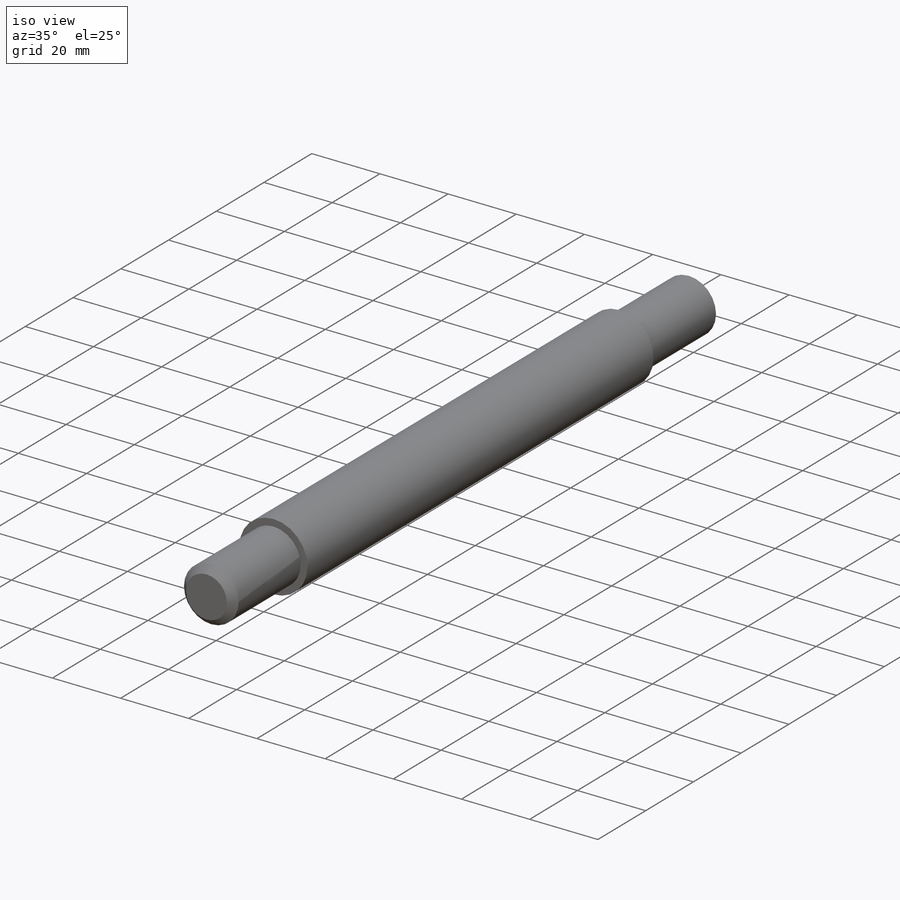
[diagram: iso view]
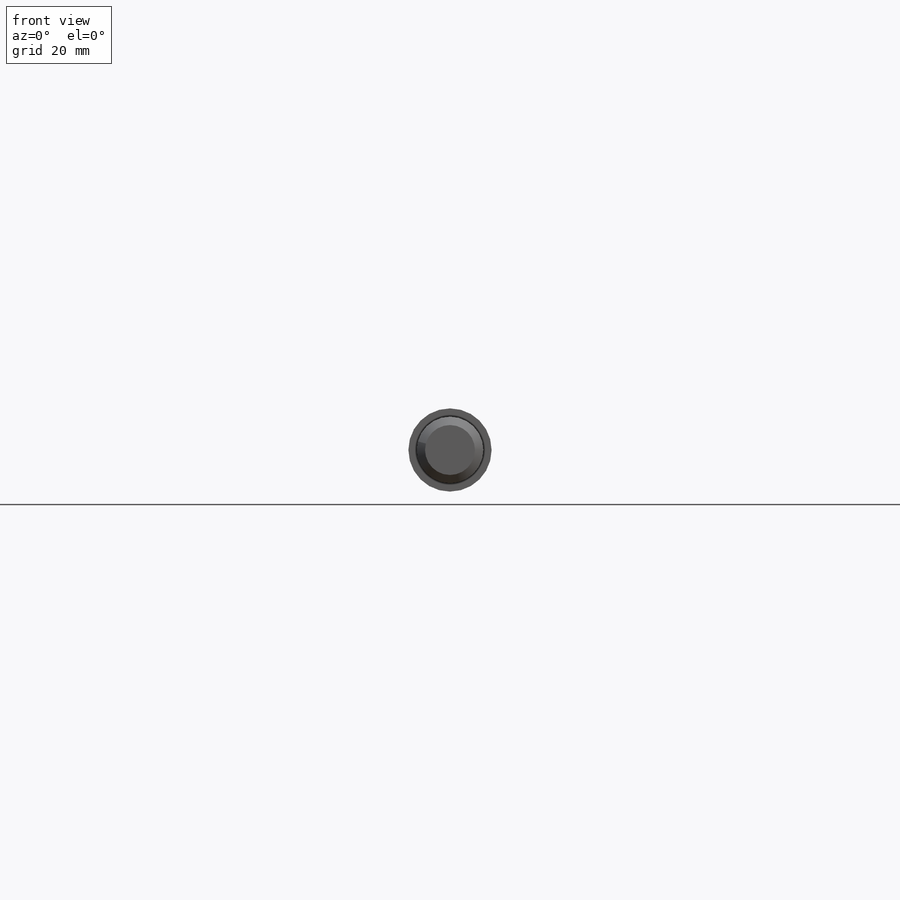
[diagram: front view]
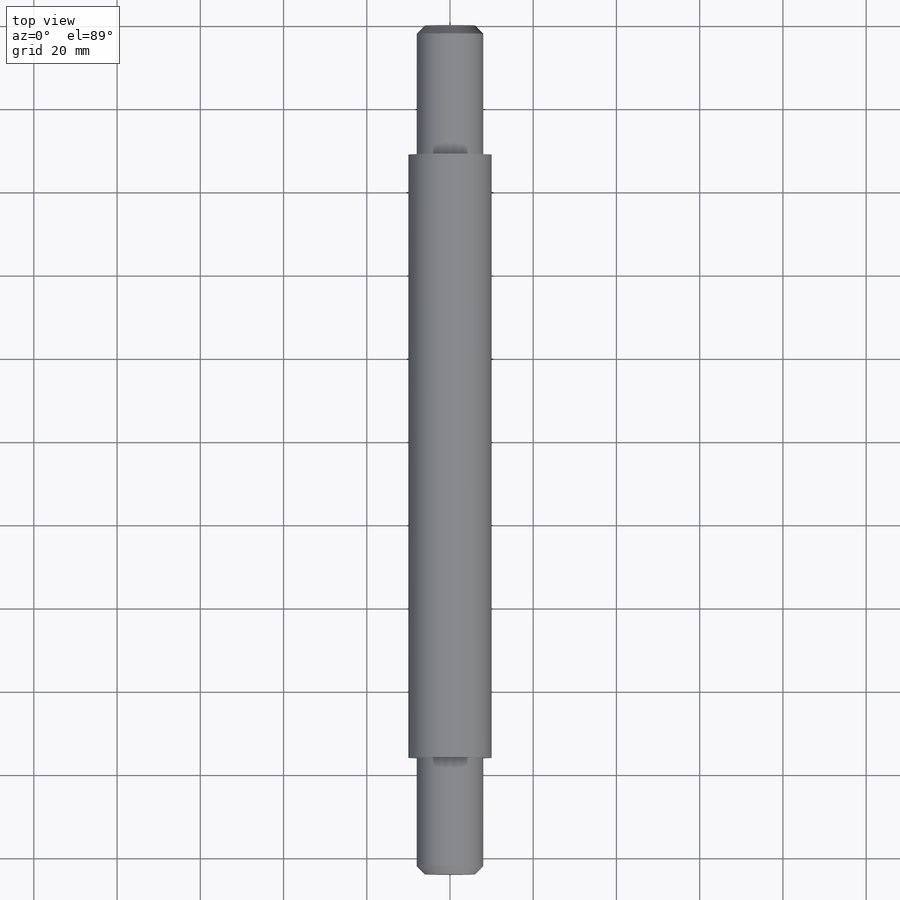
[diagram: top view]
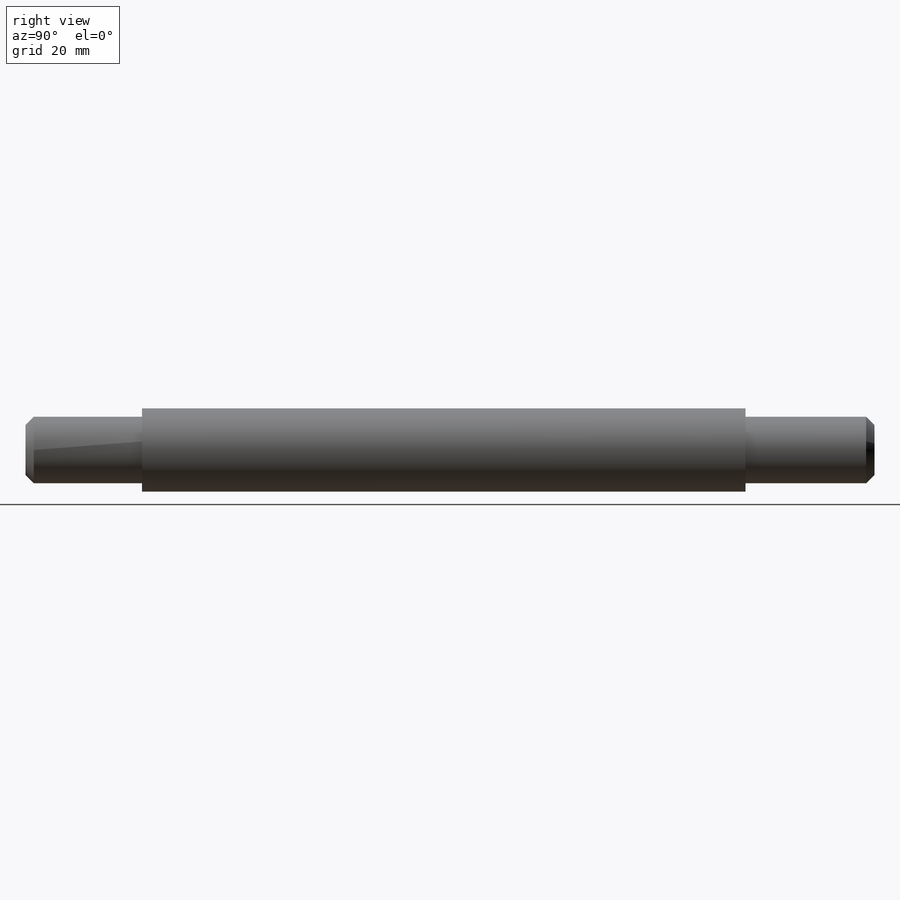
[diagram: right view]
SOLIDWORKS PART (.sldprt)
format: sldprt  version: not decoded by parser v0  size: 195,072 bytes
history: native  units: mm
features: plane x3, sketch x3, cut_extrude x2, thread x2, chamfer x2, material x1, extrude x1 (+9 scaffold rows collapsed)
feature tree (23):
  scaffold x9  (default folders/planes/origin — collapsed)
  material  "Material <nicht festgelegt>"
  plane  "Ebene vorne"
  plane  "Ebene oben"
  plane  "Ebene rechts"
  sketch  "Skizze1"  dims[D1=20.0mm]
  extrude  "Aufsatz-Linear austragen1"  Depth=204mm
  sketch  "Skizze2"  dims[D1=16.0mm D2=20.0mm]
  cut_extrude  "Schnitt-Linear austragen1"  [1 undecoded]
  thread  "Gewindedarstellung2"  Diameter=14mm  [1 undecoded]
  sketch  "Skizze3"  dims[D1=16.0mm D2=20.0mm]
  cut_extrude  "Schnitt-Linear austragen2"  [1 undecoded]
  thread  "Gewindedarstellung1"  Diameter=14mm  [1 undecoded]
  chamfer  "Fase1"  Distance=2mm Angle=45deg
  chamfer  "Fase2"  Distance=2mm Angle=45deg
decode coverage: 8 of 10 modeling features carry decoded parameters
note: 4 parameter values undecoded
note: suppression state not decoded; provenance and decode notes live in map.json
